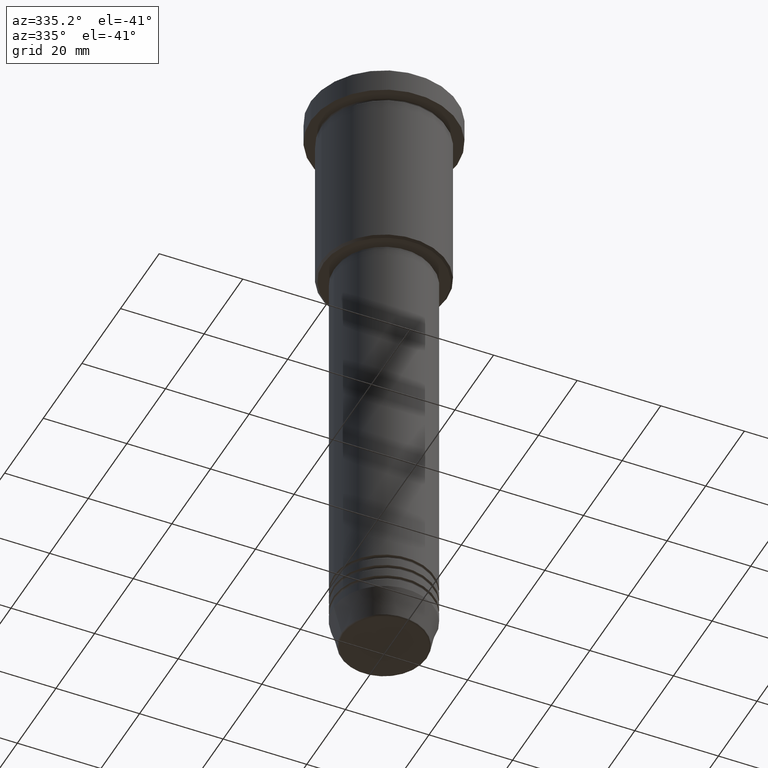
[diagram: clean part render]
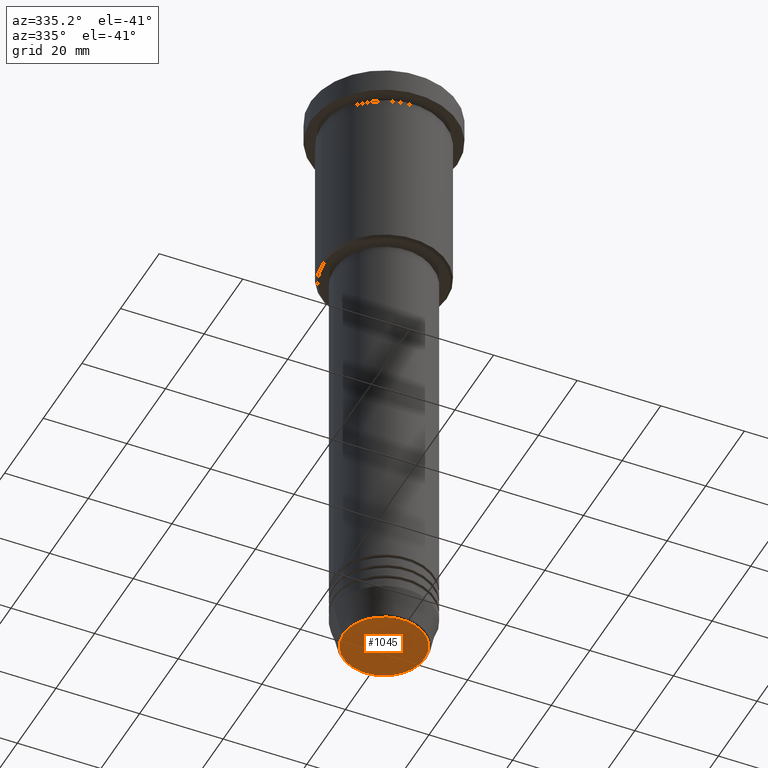
[diagram: same view with one face highlighted and labeled with its STEP entity id]
A machine part, auxiliary view. The second image highlights one B-rep face of the part: STEP entity #1045.
In plain terms, the highlighted planar face has unit normal (0, -0, 1).
Its self-contained STEP definition (entity closure, byte-faithful):
#56 = DIRECTION ( 'NONE',  ( 0.000000000000000000, 0.000000000000000000, -1.000000000000000000 ) ) ;
#64 = EDGE_LOOP ( 'NONE', ( #836, #736 ) ) ;
#210 = FACE_OUTER_BOUND ( 'NONE', #64, .T. ) ;
#277 = VERTEX_POINT ( 'NONE', #437 ) ;
#388 = PLANE ( 'NONE',  #612 ) ;
#437 = CARTESIAN_POINT ( 'NONE',  ( 9.740692158992667160, 0.000000000000000000, -150.9999999999999716 ) ) ;
#443 = CARTESIAN_POINT ( 'NONE',  ( -9.740692158992667160, 1.222463696683475393E-15, -150.9999999999999716 ) ) ;
#455 = EDGE_CURVE ( 'NONE', #277, #1036, #1170, .T. ) ;
#464 = DIRECTION ( 'NONE',  ( 0.000000000000000000, 0.000000000000000000, -1.000000000000000000 ) ) ;
#550 = AXIS2_PLACEMENT_3D ( 'NONE', #592, #56, #864 ) ;
#566 = CARTESIAN_POINT ( 'NONE',  ( 0.000000000000000000, 0.000000000000000000, -150.9999999999999716 ) ) ;
#578 = DIRECTION ( 'NONE',  ( 1.000000000000000000, 0.000000000000000000, 0.000000000000000000 ) ) ;
#592 = CARTESIAN_POINT ( 'NONE',  ( 0.000000000000000000, 0.000000000000000000, -150.9999999999999716 ) ) ;
#612 = AXIS2_PLACEMENT_3D ( 'NONE', #566, #757, #578 ) ;
#736 = ORIENTED_EDGE ( 'NONE', *, *, #993, .T. ) ;
#751 = CIRCLE ( 'NONE', #1007, 9.740692158992667160 ) ;
#757 = DIRECTION ( 'NONE',  ( 0.000000000000000000, -0.000000000000000000, 1.000000000000000000 ) ) ;
#832 = DIRECTION ( 'NONE',  ( 1.000000000000000000, 0.000000000000000000, 0.000000000000000000 ) ) ;
#836 = ORIENTED_EDGE ( 'NONE', *, *, #455, .T. ) ;
#864 = DIRECTION ( 'NONE',  ( 1.000000000000000000, 0.000000000000000000, 0.000000000000000000 ) ) ;
#925 = CARTESIAN_POINT ( 'NONE',  ( 0.000000000000000000, 0.000000000000000000, -150.9999999999999716 ) ) ;
#993 = EDGE_CURVE ( 'NONE', #1036, #277, #751, .T. ) ;
#1007 = AXIS2_PLACEMENT_3D ( 'NONE', #925, #464, #832 ) ;
#1036 = VERTEX_POINT ( 'NONE', #443 ) ;
#1045 = ADVANCED_FACE ( 'NONE', ( #210 ), #388, .F. ) ;
#1170 = CIRCLE ( 'NONE', #550, 9.740692158992667160 ) ;